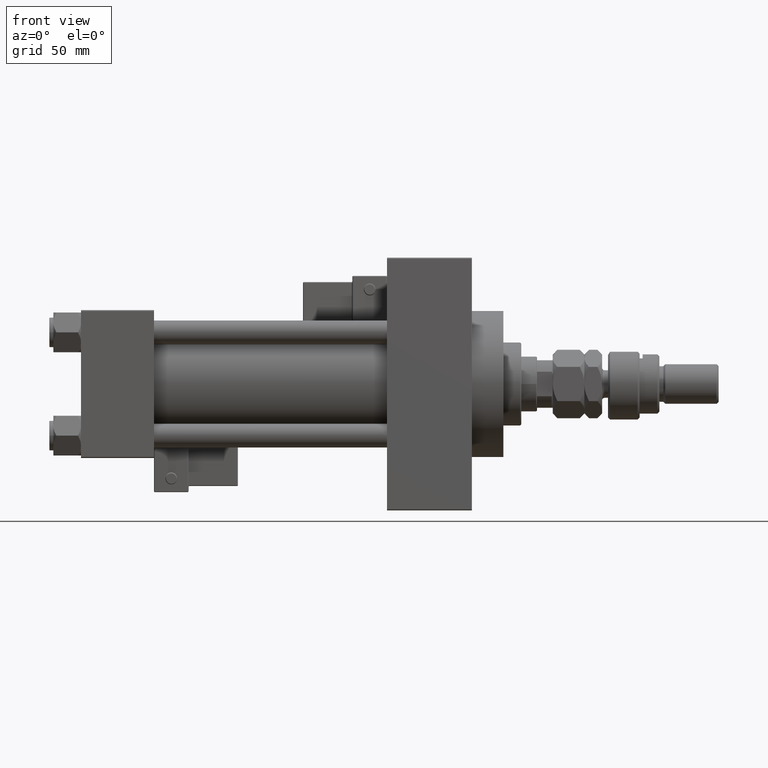
[diagram: clean part render]
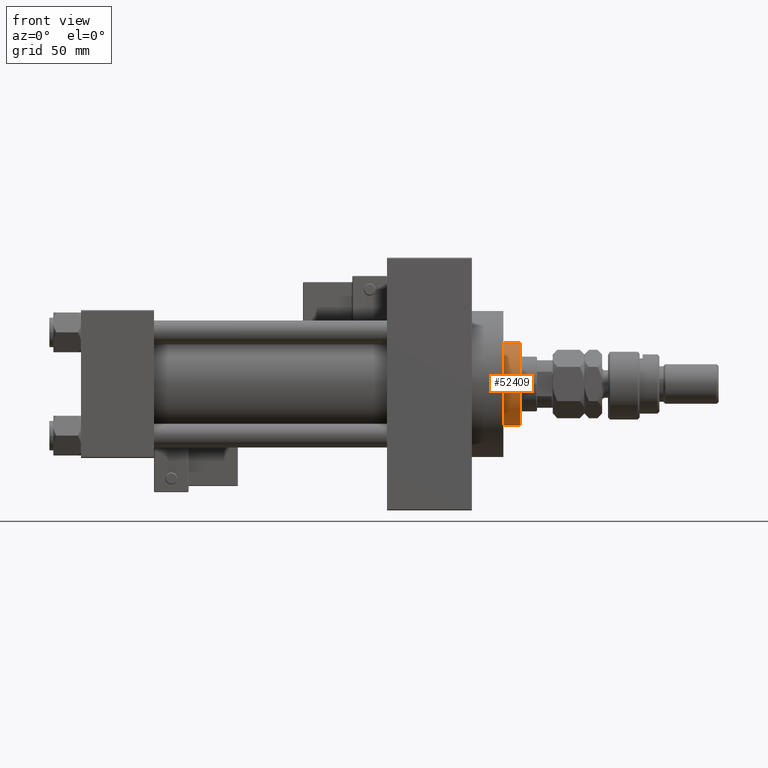
[diagram: same view with one face highlighted and labeled with its STEP entity id]
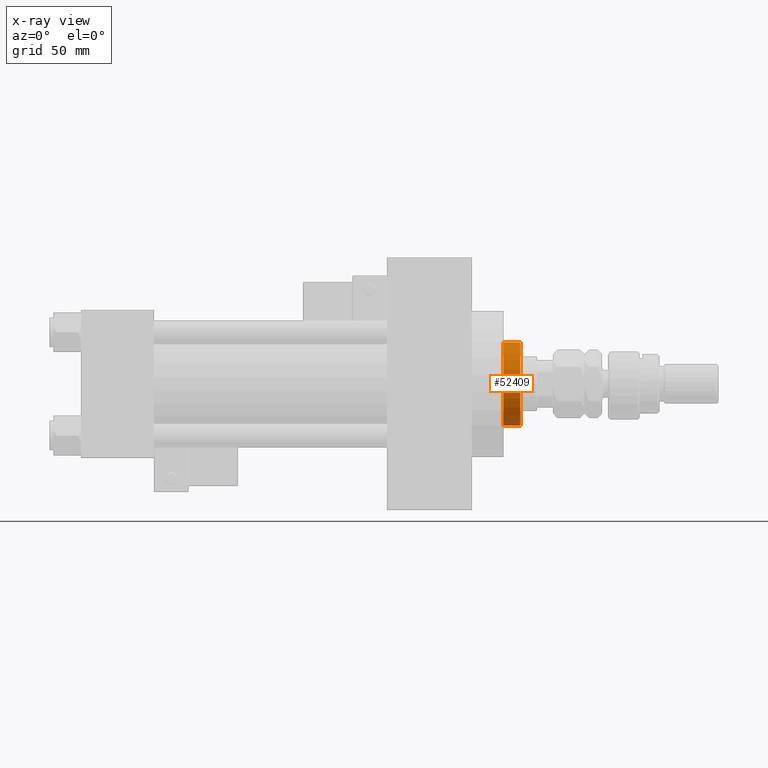
[diagram: x-ray of the same camera — body ghosted, the highlighted face saturated]
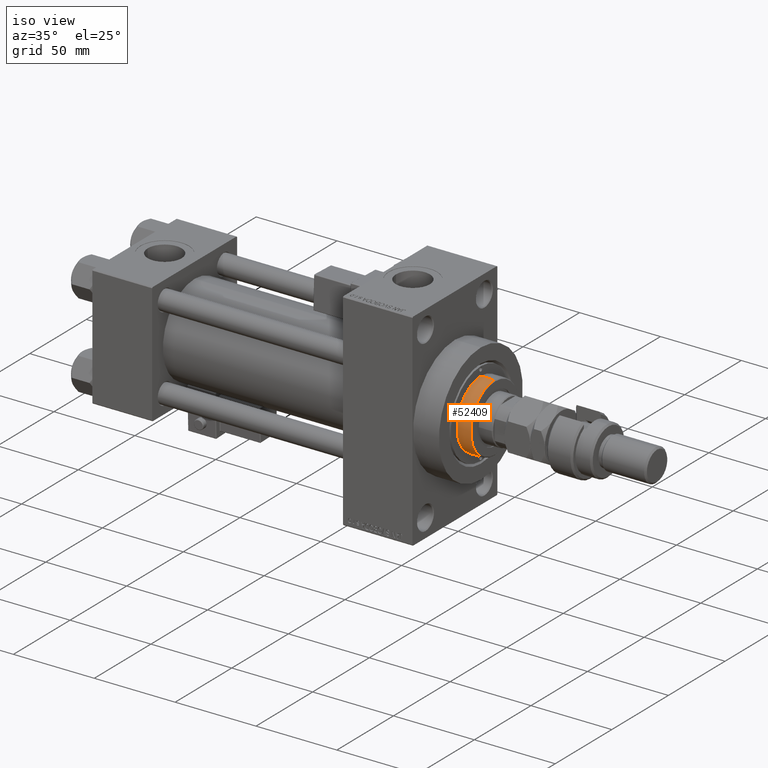
[diagram: same view with one face highlighted and labeled with its STEP entity id]
A machine part, front view. The second image highlights one B-rep face of the part: STEP entity #52409.
The next image is the same camera in x-ray: the body ghosted, the highlighted face saturated — about 0% of this face is hidden behind the body in this view.
A second angle (iso view) of the same face is appended — the face is thin or edge-on in the first view.
In plain terms, the highlighted cylindrical surface (partial cylindrical patch) has radius 21 mm, axis along (-1, 0, 0).
Its self-contained STEP definition (entity closure, byte-faithful):
#1609 = AXIS2_PLACEMENT_3D ( 'NONE', #25735, #21773, #37933 ) ;
#4248 = VECTOR ( 'NONE', #44896, 1000.000000000000000 ) ;
#6009 = ORIENTED_EDGE ( 'NONE', *, *, #14446, .T. ) ;
#6344 = ORIENTED_EDGE ( 'NONE', *, *, #47256, .T. ) ;
#7911 = CARTESIAN_POINT ( 'NONE',  ( 21.00000000000000000, 2.571758278209441661E-15, 43.25999999999999801 ) ) ;
#10945 = CIRCLE ( 'NONE', #1609, 21.00000000000000000 ) ;
#11718 = AXIS2_PLACEMENT_3D ( 'NONE', #38750, #22325, #50932 ) ;
#12216 = AXIS2_PLACEMENT_3D ( 'NONE', #18391, #34843, #19443 ) ;
#13832 = FACE_OUTER_BOUND ( 'NONE', #23138, .T. ) ;
#14446 = EDGE_CURVE ( 'NONE', #52203, #26709, #10945, .T. ) ;
#15487 = CARTESIAN_POINT ( 'NONE',  ( -21.00000000000000000, 0.000000000000000000, 52.25999999999999801 ) ) ;
#18391 = CARTESIAN_POINT ( 'NONE',  ( 0.000000000000000000, 0.000000000000000000, 43.25999999999999801 ) ) ;
#19443 = DIRECTION ( 'NONE',  ( 1.000000000000000000, 0.000000000000000000, 0.000000000000000000 ) ) ;
#21773 = DIRECTION ( 'NONE',  ( 0.000000000000000000, 0.000000000000000000, -1.000000000000000000 ) ) ;
#22155 = EDGE_CURVE ( 'NONE', #45935, #28723, #25777, .T. ) ;
#22325 = DIRECTION ( 'NONE',  ( -0.000000000000000000, -0.000000000000000000, -1.000000000000000000 ) ) ;
#23138 = EDGE_LOOP ( 'NONE', ( #6009, #6344, #32170, #34146 ) ) ;
#25735 = CARTESIAN_POINT ( 'NONE',  ( 0.000000000000000000, 0.000000000000000000, 51.75999999999999801 ) ) ;
#25777 = CIRCLE ( 'NONE', #12216, 21.00000000000000000 ) ;
#26709 = VERTEX_POINT ( 'NONE', #41486 ) ;
#26810 = CYLINDRICAL_SURFACE ( 'NONE', #11718, 21.00000000000000000 ) ;
#28723 = VERTEX_POINT ( 'NONE', #48938 ) ;
#29130 = LINE ( 'NONE', #49803, #44575 ) ;
#32170 = ORIENTED_EDGE ( 'NONE', *, *, #22155, .T. ) ;
#32525 = CARTESIAN_POINT ( 'NONE',  ( -21.00000000000000000, 0.000000000000000000, 51.75999999999999801 ) ) ;
#33920 = DIRECTION ( 'NONE',  ( -0.000000000000000000, -0.000000000000000000, -1.000000000000000000 ) ) ;
#34146 = ORIENTED_EDGE ( 'NONE', *, *, #41057, .F. ) ;
#34843 = DIRECTION ( 'NONE',  ( 0.000000000000000000, 0.000000000000000000, 1.000000000000000000 ) ) ;
#37933 = DIRECTION ( 'NONE',  ( 1.000000000000000000, 0.000000000000000000, 0.000000000000000000 ) ) ;
#38750 = CARTESIAN_POINT ( 'NONE',  ( 0.000000000000000000, 0.000000000000000000, 52.25999999999999801 ) ) ;
#39887 = LINE ( 'NONE', #15487, #4248 ) ;
#41057 = EDGE_CURVE ( 'NONE', #52203, #28723, #39887, .T. ) ;
#41486 = CARTESIAN_POINT ( 'NONE',  ( 21.00000000000000000, 2.571758278209441661E-15, 51.75999999999999801 ) ) ;
#44575 = VECTOR ( 'NONE', #33920, 1000.000000000000000 ) ;
#44896 = DIRECTION ( 'NONE',  ( -0.000000000000000000, -0.000000000000000000, -1.000000000000000000 ) ) ;
#45935 = VERTEX_POINT ( 'NONE', #7911 ) ;
#47256 = EDGE_CURVE ( 'NONE', #26709, #45935, #29130, .T. ) ;
#48938 = CARTESIAN_POINT ( 'NONE',  ( -21.00000000000000000, 0.000000000000000000, 43.25999999999999801 ) ) ;
#49803 = CARTESIAN_POINT ( 'NONE',  ( 21.00000000000000000, 2.571758278209441661E-15, 52.25999999999999801 ) ) ;
#50932 = DIRECTION ( 'NONE',  ( -1.000000000000000000, 0.000000000000000000, 0.000000000000000000 ) ) ;
#52203 = VERTEX_POINT ( 'NONE', #32525 ) ;
#52409 = ADVANCED_FACE ( 'NONE', ( #13832 ), #26810, .T. ) ;